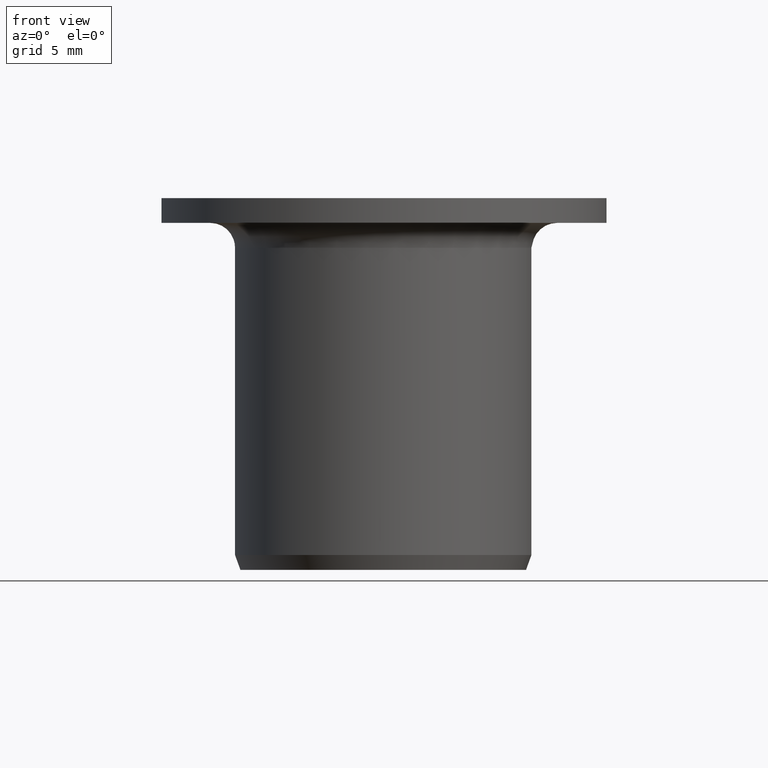
[diagram: clean part render]
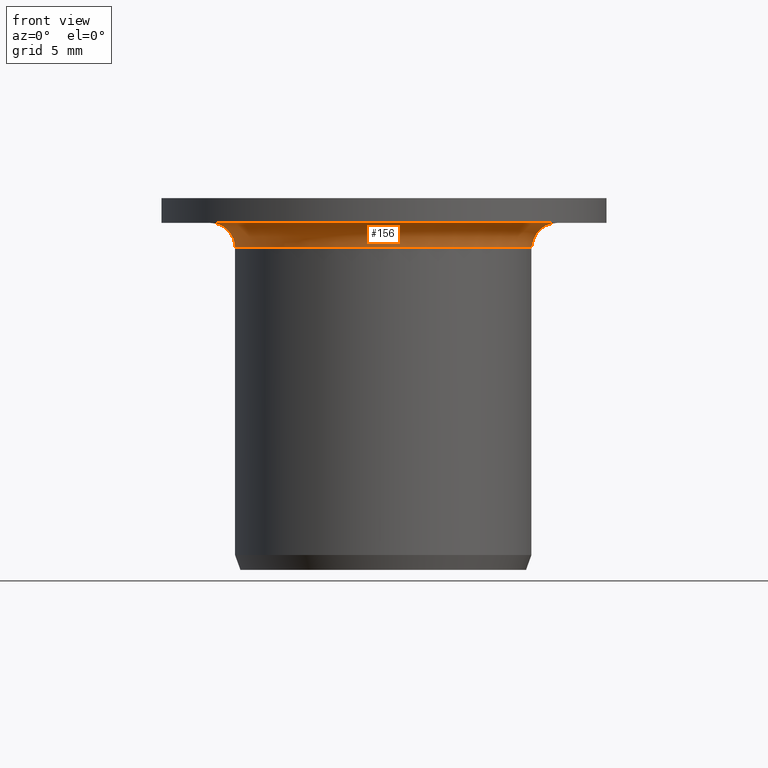
[diagram: same view with one face highlighted and labeled with its STEP entity id]
A machine part, front view. The second image highlights one B-rep face of the part: STEP entity #156.
In plain terms, the highlighted toroidal blend (fillet) surface has major radius 7 mm and minor (blend) radius 1 mm.
Its self-contained STEP definition (entity closure, byte-faithful):
#156=ADVANCED_FACE('',(#173),#174,.F.);
#173=FACE_OUTER_BOUND('',#198,.T.);
#174=TOROIDAL_SURFACE('',#199,0.007,0.001);
#198=EDGE_LOOP('',(#243,#244,#245,#246));
#199=AXIS2_PLACEMENT_3D('',#247,#248,#249);
#243=ORIENTED_EDGE('',*,*,#328,.T.);
#244=ORIENTED_EDGE('',*,*,#329,.T.);
#245=ORIENTED_EDGE('',*,*,#330,.F.);
#246=ORIENTED_EDGE('',*,*,#316,.F.);
#247=CARTESIAN_POINT('',(0.0,0.0,0.013));
#248=DIRECTION('',(0.0,-6.12323399573677E-017,-1.0));
#249=DIRECTION('',(0.0,1.0,-6.12323399573677E-017));
#316=EDGE_CURVE('',#349,#351,#352,.T.);
#328=EDGE_CURVE('',#349,#372,#373,.T.);
#329=EDGE_CURVE('',#372,#374,#375,.T.);
#330=EDGE_CURVE('',#351,#374,#376,.T.);
#349=VERTEX_POINT('',#414);
#351=VERTEX_POINT('',#417);
#352=B_SPLINE_CURVE_WITH_KNOTS('',3,(#418,#419,#420,#421,#422,#423,#424,#425,#426,#427),.UNSPECIFIED.,.F.,.F.,(4,2,2,2,4),(2.00072936889103E-005,0.000411708104519548,0.000803408915350187,0.00119510972618082,0.00158681053701146),.UNSPECIFIED.);
#372=VERTEX_POINT('',#472);
#373=CIRCLE('',#473,0.007);
#374=VERTEX_POINT('',#474);
#375=B_SPLINE_CURVE_WITH_KNOTS('',3,(#475,#476,#477,#478,#479,#480,#481,#482,#483,#484),.UNSPECIFIED.,.F.,.F.,(4,2,2,2,4),(2.00072936889103E-005,0.000411708104519549,0.000803408915350187,0.00119510972618082,0.00158681053701146),.UNSPECIFIED.);
#376=CIRCLE('',#485,0.006);
#414=CARTESIAN_POINT('',(0.00698024726283341,-0.00052549800162008,0.014));
#417=CARTESIAN_POINT('',(0.00598973360714681,-0.000350843719362359,0.013));
#418=CARTESIAN_POINT('',(0.00698024726283341,-0.000525498001620082,0.014));
#419=CARTESIAN_POINT('',(0.00685023185644087,-0.000502572777565301,0.014));
#420=CARTESIAN_POINT('',(0.00672174279182906,-0.000479916688748246,0.0139740838243384));
#421=CARTESIAN_POINT('',(0.00648277217338819,-0.000437779721120534,0.0138743920227315));
#422=CARTESIAN_POINT('',(0.0063727205672248,-0.000418374653683625,0.0138003157734708));
#423=CARTESIAN_POINT('',(0.00618984042104949,-0.000386127949677009,0.0136164015934037));
#424=CARTESIAN_POINT('',(0.00611565501819323,-0.000373047061578725,0.0135048947289893));
#425=CARTESIAN_POINT('',(0.00601622534680585,-0.000355514927830153,0.0132640740875742));
#426=CARTESIAN_POINT('',(0.00598973360714299,-0.000350843719361686,0.0131324628118535));
#427=CARTESIAN_POINT('',(0.00598973360714293,-0.000350843719361676,0.0130000000000005));
#472=CARTESIAN_POINT('',(0.00698024726283341,0.000525498001620084,0.014));
#473=AXIS2_PLACEMENT_3D('',#528,#529,#530);
#474=CARTESIAN_POINT('',(0.00598973360714681,0.000350843719362362,0.013));
#475=CARTESIAN_POINT('',(0.00698024726283341,0.000525498001620085,0.014));
#476=CARTESIAN_POINT('',(0.00685023185644087,0.000502572777565304,0.014));
#477=CARTESIAN_POINT('',(0.00672174279182906,0.000479916688748249,0.0139740838243384));
#478=CARTESIAN_POINT('',(0.0064827721733882,0.000437779721120537,0.0138743920227315));
#479=CARTESIAN_POINT('',(0.0063727205672248,0.000418374653683628,0.0138003157734708));
#480=CARTESIAN_POINT('',(0.00618984042104949,0.000386127949677012,0.0136164015934037));
#481=CARTESIAN_POINT('',(0.00611565501819323,0.000373047061578728,0.0135048947289893));
#482=CARTESIAN_POINT('',(0.00601622534680585,0.000355514927830155,0.0132640740875742));
#483=CARTESIAN_POINT('',(0.00598973360714299,0.000350843719361689,0.0131324628118535));
#484=CARTESIAN_POINT('',(0.00598973360714293,0.000350843719361679,0.0130000000000005));
#485=AXIS2_PLACEMENT_3D('',#531,#532,#533);
#528=CARTESIAN_POINT('',(0.0,0.0,0.014));
#529=DIRECTION('',(0.0,-6.12323399573677E-017,-1.0));
#530=DIRECTION('',(0.0,1.0,-6.12323399573677E-017));
#531=CARTESIAN_POINT('',(0.0,0.0,0.013));
#532=DIRECTION('',(0.0,-6.12323399573677E-017,-1.0));
#533=DIRECTION('',(0.0,1.0,-6.12323399573677E-017));